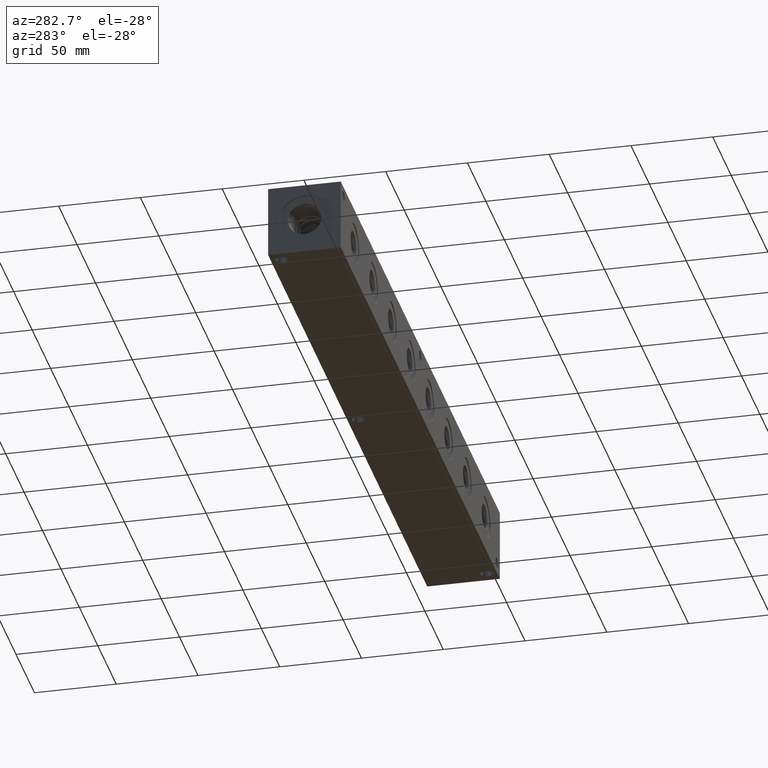
[diagram: clean part render]
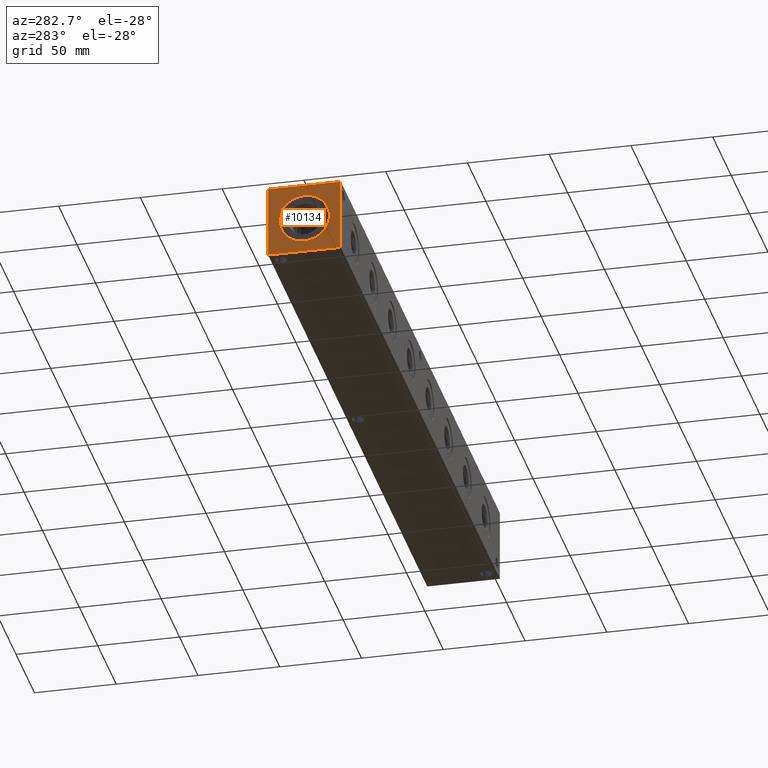
[diagram: same view with one face highlighted and labeled with its STEP entity id]
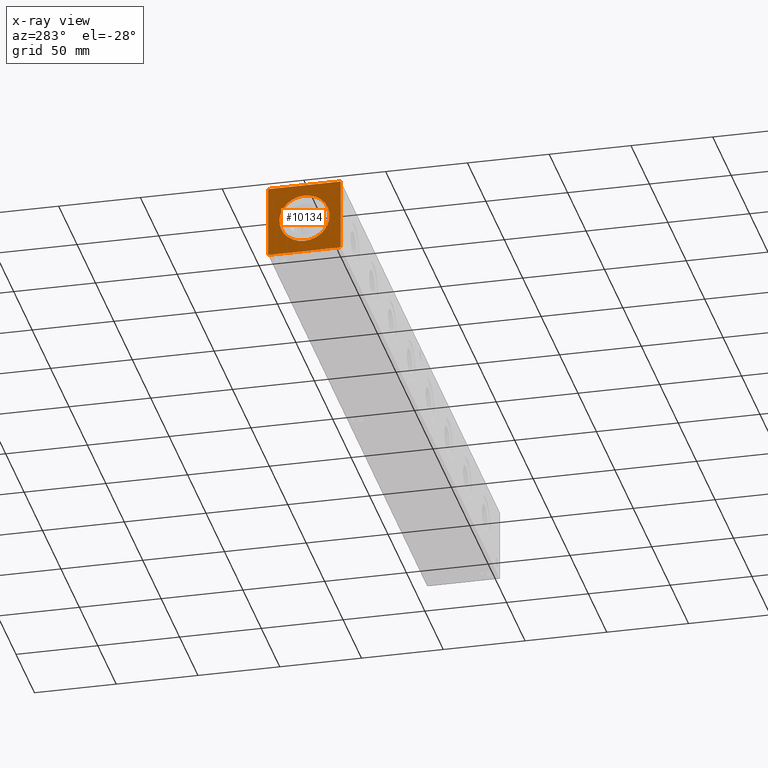
[diagram: x-ray of the same camera — body ghosted, the highlighted face saturated]
A machine part, auxiliary view. The second image highlights one B-rep face of the part: STEP entity #10134.
The next image is the same camera in x-ray: the body ghosted, the highlighted face saturated — about 0% of this face is hidden behind the body in this view.
In plain terms, the highlighted planar face has unit normal (-1, 0, 0).
Its self-contained STEP definition (entity closure, byte-faithful):
#512=CIRCLE('',#10877,15.3162);
#513=CIRCLE('',#10878,15.3162);
#599=FACE_BOUND('',#1969,.T.);
#847=PLANE('',#10891);
#1369=FACE_OUTER_BOUND('',#1968,.T.);
#1968=EDGE_LOOP('',(#9122,#9123,#9124,#9125));
#1969=EDGE_LOOP('',(#9126,#9127));
#2237=LINE('',#15715,#3009);
#2757=LINE('',#18188,#3529);
#2758=LINE('',#18189,#3530);
#2759=LINE('',#18190,#3531);
#3009=VECTOR('',#11245,10.);
#3529=VECTOR('',#13139,10.);
#3530=VECTOR('',#13140,10.);
#3531=VECTOR('',#13141,10.);
#4181=VERTEX_POINT('',#15708);
#4184=VERTEX_POINT('',#15713);
#4831=VERTEX_POINT('',#18157);
#4832=VERTEX_POINT('',#18158);
#4841=VERTEX_POINT('',#18186);
#4842=VERTEX_POINT('',#18187);
#5331=EDGE_CURVE('',#4184,#4181,#2237,.T.);
#6267=EDGE_CURVE('',#4831,#4832,#512,.T.);
#6268=EDGE_CURVE('',#4832,#4831,#513,.T.);
#6281=EDGE_CURVE('',#4841,#4842,#2757,.T.);
#6282=EDGE_CURVE('',#4842,#4181,#2758,.T.);
#6283=EDGE_CURVE('',#4841,#4184,#2759,.T.);
#9122=ORIENTED_EDGE('',*,*,#6281,.T.);
#9123=ORIENTED_EDGE('',*,*,#6282,.T.);
#9124=ORIENTED_EDGE('',*,*,#5331,.F.);
#9125=ORIENTED_EDGE('',*,*,#6283,.F.);
#9126=ORIENTED_EDGE('',*,*,#6267,.T.);
#9127=ORIENTED_EDGE('',*,*,#6268,.T.);
#10134=ADVANCED_FACE('',(#1369,#599),#847,.T.);
#10877=AXIS2_PLACEMENT_3D('',#18159,#13105,#13106);
#10878=AXIS2_PLACEMENT_3D('',#18160,#13107,#13108);
#10891=AXIS2_PLACEMENT_3D('',#18185,#13137,#13138);
#11245=DIRECTION('',(0.,-1.,0.));
#13105=DIRECTION('center_axis',(1.,0.,0.));
#13106=DIRECTION('ref_axis',(0.,0.,1.));
#13107=DIRECTION('center_axis',(1.,0.,0.));
#13108=DIRECTION('ref_axis',(0.,0.,1.));
#13137=DIRECTION('center_axis',(-1.,0.,0.));
#13138=DIRECTION('ref_axis',(0.,-1.,0.));
#13139=DIRECTION('',(0.,-1.,0.));
#13140=DIRECTION('',(0.,0.,1.));
#13141=DIRECTION('',(0.,0.,1.));
#15708=CARTESIAN_POINT('',(0.,0.,44.45));
#15713=CARTESIAN_POINT('',(0.,44.45,44.45));
#15715=CARTESIAN_POINT('',(0.,44.45,44.45));
#18157=CARTESIAN_POINT('',(0.,22.225,37.5412));
#18158=CARTESIAN_POINT('',(0.,22.225,6.9088));
#18159=CARTESIAN_POINT('Origin',(0.,22.225,22.225));
#18160=CARTESIAN_POINT('Origin',(0.,22.225,22.225));
#18185=CARTESIAN_POINT('Origin',(0.,44.45,0.));
#18186=CARTESIAN_POINT('',(0.,44.45,0.));
#18187=CARTESIAN_POINT('',(0.,0.,0.));
#18188=CARTESIAN_POINT('',(0.,44.45,0.));
#18189=CARTESIAN_POINT('',(0.,0.,0.));
#18190=CARTESIAN_POINT('',(0.,44.45,0.));